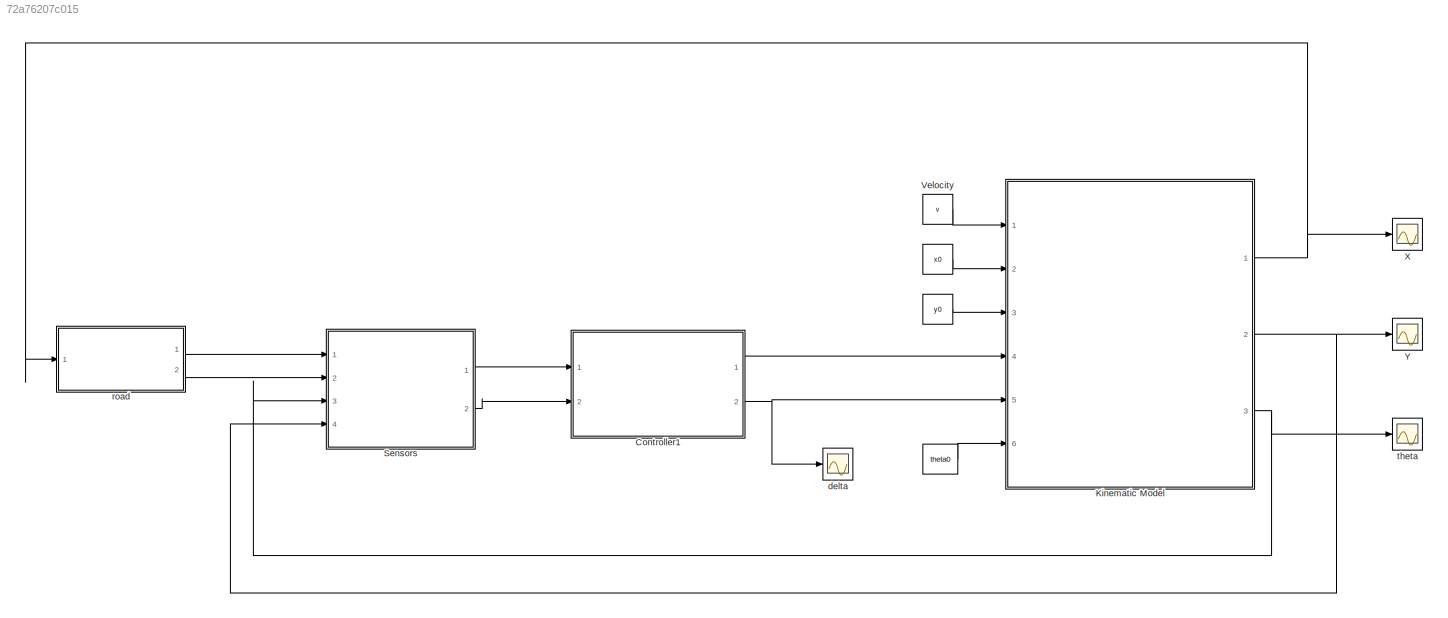
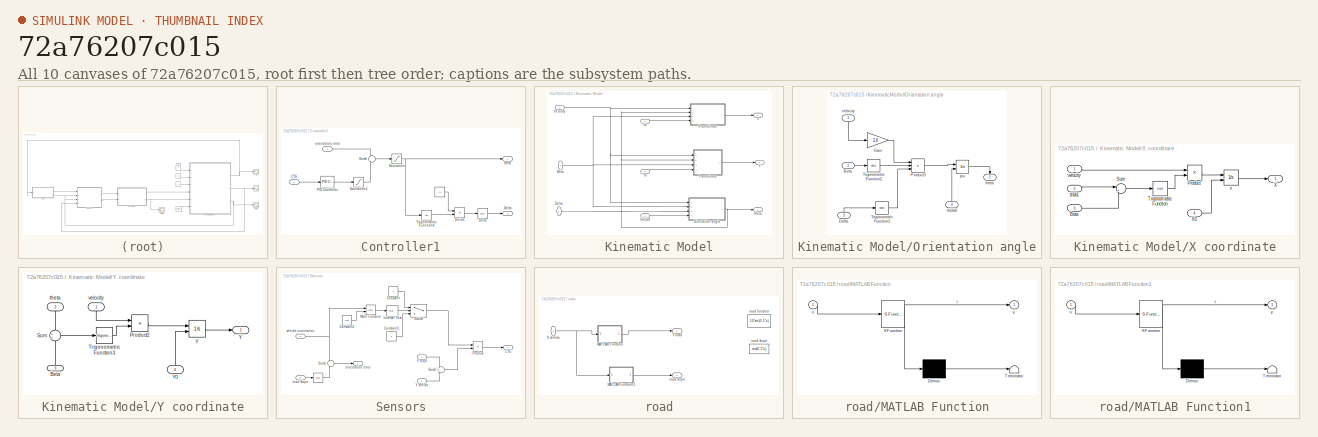
[diagram: thumbnail index - all 10 canvases of the model, root first then tree order]
MODEL slx_72a76207c015
KIND model
CONFIG AbsTol = auto
CONFIG FixedStep = 0.0001
CONFIG MaxStep = auto
CONFIG MinStep = auto
CONFIG RelTol = 1e-3
CONFIG SampleTimeConstraint = Unconstrained
CONFIG Solver = ode45
CONFIG SolverMode = SingleTasking
CONFIG SolverName = ode45
CONFIG StartTime = 0.0
CONFIG StopTime = 50
BLOCK [Constant]  
  Value = x0
BLOCK [Constant]   
  Value = y0
BLOCK [Constant]    
  Value = theta0
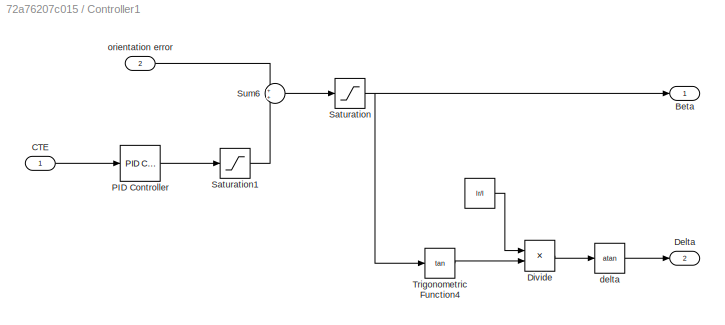
BLOCK [SubSystem] Controller1
  Ports = [2, 2]
  RequestExecContextInheritance = off
  Variant = off
BLOCK [Constant] Controller1/ 
  Value = lr/l
BLOCK [Outport] Controller1/Beta 
  IconDisplay = Port number
BLOCK [Inport] Controller1/CTE
  IconDisplay = Port number
BLOCK [Outport] Controller1/Delta
  IconDisplay = Port number
  Port = 2
BLOCK [Product] Controller1/Divide
  InputSameDT = off
  Inputs = /*
  OutDataTypeStr = Inherit: Inherit via internal rule
  Ports = [2, 1]
  RndMeth = Floor
  SaturateOnIntegerOverflow = off
BLOCK [Reference] Controller1/PID Controller  REF=simulink/Continuous/PID Controller
  Ports = [1, 1]
  SourceBlock = simulink/Continuous/PID Controller
  SourceType = PID 1dof
BLOCK [Saturate] Controller1/Saturation
  InputPortMap = u0
  LowerLimit = -pi/6
  Ports = [1, 1]
  UpperLimit = pi/6
BLOCK [Saturate] Controller1/Saturation1
  InputPortMap = u0
  LowerLimit = -pi/6
  Ports = [1, 1]
  UpperLimit = pi/6
BLOCK [Sum] Controller1/Sum6
  IconShape = round
  InputSameDT = off
  OutDataTypeStr = Inherit: Inherit via internal rule
  Ports = [2, 1]
  SaturateOnIntegerOverflow = off
BLOCK [Trigonometry] Controller1/Trigonometric Function4
  Operator = tan
  Ports = [1, 1]
BLOCK [Trigonometry] Controller1/delta 
  Operator = atan
  Ports = [1, 1]
BLOCK [Inport] Controller1/orientation error
  IconDisplay = Port number
  Port = 2
BLOCK [SubSystem] Kinematic Model
  Ports = [6, 3]
  RequestExecContextInheritance = off
  Variant = off
BLOCK [Inport] Kinematic Model/Beta 
  IconDisplay = Port number
  Port = 4
BLOCK [Inport] Kinematic Model/Delta
  IconDisplay = Port number
  Port = 5
BLOCK [SubSystem] Kinematic Model/Orientation angle
  Ports = [4, 1]
  RequestExecContextInheritance = off
  Variant = off
BLOCK [Inport] Kinematic Model/Orientation angle/Beta
  IconDisplay = Port number
  Port = 2
BLOCK [Inport] Kinematic Model/Orientation angle/Delta
  IconDisplay = Port number
  Port = 3
BLOCK [Gain] Kinematic Model/Orientation angle/Gain
  Gain = 1/l
  OutDataTypeStr = Inherit: Inherit via internal rule
  ParamDataTypeStr = Inherit: Inherit via internal rule
  SaturateOnIntegerOverflow = off
BLOCK [Product] Kinematic Model/Orientation angle/Product3
  InputSameDT = off
  Inputs = 3
  OutDataTypeStr = Inherit: Inherit via internal rule
  Ports = [3, 1]
  RndMeth = Floor
  SaturateOnIntegerOverflow = off
BLOCK [Trigonometry] Kinematic Model/Orientation angle/Trigonometric Function1
  Operator = tan
  Ports = [1, 1]
BLOCK [Trigonometry] Kinematic Model/Orientation angle/Trigonometric Function2
  Operator = cos
  Ports = [1, 1]
BLOCK [Integrator] Kinematic Model/Orientation angle/psi
  InitialConditionSource = external
  Ports = [2, 1]
BLOCK [Outport] Kinematic Model/Orientation angle/theta
  IconDisplay = Port number
BLOCK [Inport] Kinematic Model/Orientation angle/theta0
  IconDisplay = Port number
  Port = 4
BLOCK [Inport] Kinematic Model/Orientation angle/velocity
  IconDisplay = Port number
BLOCK [Inport] Kinematic Model/Velocity 
  IconDisplay = Port number
BLOCK [Outport] Kinematic Model/X
  IconDisplay = Port number
BLOCK [SubSystem] Kinematic Model/X coordinate
  Ports = [4, 1]
  RequestExecContextInheritance = off
  Variant = off
BLOCK [Inport] Kinematic Model/X coordinate/Beta
  IconDisplay = Port number
  Port = 3
BLOCK [Product] Kinematic Model/X coordinate/Product
  InputSameDT = off
  OutDataTypeStr = Inherit: Inherit via internal rule
  Ports = [2, 1]
  RndMeth = Floor
  SaturateOnIntegerOverflow = off
BLOCK [Sum] Kinematic Model/X coordinate/Sum
  IconShape = round
  InputSameDT = off
  Inputs = |++
  OutDataTypeStr = Inherit: Inherit via internal rule
  Ports = [2, 1]
  SaturateOnIntegerOverflow = off
BLOCK [Trigonometry] Kinematic Model/X coordinate/Trigonometric Function
  Operator = cos
  Ports = [1, 1]
BLOCK [Outport] Kinematic Model/X coordinate/X 
  IconDisplay = Port number
BLOCK [Inport] Kinematic Model/X coordinate/X0 
  IconDisplay = Port number
  Port = 4
BLOCK [Inport] Kinematic Model/X coordinate/theta 
  IconDisplay = Port number
  Port = 2
BLOCK [Inport] Kinematic Model/X coordinate/velocity
  IconDisplay = Port number
BLOCK [Integrator] Kinematic Model/X coordinate/x
  InitialConditionSource = external
  Ports = [2, 1]
BLOCK [Inport] Kinematic Model/X0
  IconDisplay = Port number
  Port = 2
BLOCK [Outport] Kinematic Model/Y
  IconDisplay = Port number
  Port = 2
BLOCK [SubSystem] Kinematic Model/Y coordinate
  Ports = [4, 1]
  RequestExecContextInheritance = off
  Variant = off
BLOCK [Inport] Kinematic Model/Y coordinate/Beta
  IconDisplay = Port number
  Port = 3
BLOCK [Product] Kinematic Model/Y coordinate/Product2
  InputSameDT = off
  OutDataTypeStr = Inherit: Inherit via internal rule
  Ports = [2, 1]
  RndMeth = Floor
  SaturateOnIntegerOverflow = off
BLOCK [Sum] Kinematic Model/Y coordinate/Sum
  IconShape = round
  InputSameDT = off
  OutDataTypeStr = Inherit: Inherit via internal rule
  Ports = [2, 1]
  SaturateOnIntegerOverflow = off
BLOCK [Trigonometry] Kinematic Model/Y coordinate/Trigonometric Function3
  Ports = [1, 1]
BLOCK [Outport] Kinematic Model/Y coordinate/Y
  IconDisplay = Port number
BLOCK [Inport] Kinematic Model/Y coordinate/Y0
  IconDisplay = Port number
  Port = 4
BLOCK [Inport] Kinematic Model/Y coordinate/theta
  IconDisplay = Port number
  Port = 2
BLOCK [Inport] Kinematic Model/Y coordinate/velocity
  IconDisplay = Port number
BLOCK [Integrator] Kinematic Model/Y coordinate/y 
  InitialCondition = 1
  InitialConditionSource = external
  Ports = [2, 1]
BLOCK [Inport] Kinematic Model/Y0
  IconDisplay = Port number
  Port = 3
BLOCK [Outport] Kinematic Model/theta
  IconDisplay = Port number
  Port = 3
BLOCK [Inport] Kinematic Model/theta0
  IconDisplay = Port number
  Port = 6
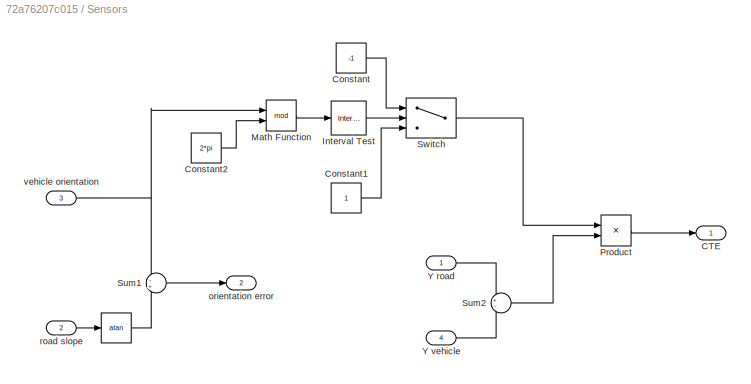
BLOCK [SubSystem] Sensors
  Ports = [4, 2]
  RequestExecContextInheritance = off
  Variant = off
BLOCK [Trigonometry] Sensors/                    
  Operator = atan
  Ports = [1, 1]
BLOCK [Outport] Sensors/CTE
  IconDisplay = Port number
BLOCK [Constant] Sensors/Constant
  Value = -1
BLOCK [Constant] Sensors/Constant1
BLOCK [Constant] Sensors/Constant2
  Value = 2*pi
BLOCK [Reference] Sensors/Interval Test  REF=simulink/Logic and Bit
Operations/Interval Test
  Ports = [1, 1]
  SourceBlock = simulink/Logic and Bit\nOperations/Interval Test
  SourceType = Interval Test
BLOCK [Math] Sensors/Math Function
  Operator = mod
  Ports = [2, 1]
BLOCK [Product] Sensors/Product
  InputSameDT = off
  OutDataTypeStr = Inherit: Inherit via internal rule
  Ports = [2, 1]
  RndMeth = Floor
  SaturateOnIntegerOverflow = off
BLOCK [Sum] Sensors/Sum1
  IconShape = round
  InputSameDT = off
  Inputs = -+
  OutDataTypeStr = Inherit: Inherit via internal rule
  Ports = [2, 1]
  SaturateOnIntegerOverflow = off
BLOCK [Sum] Sensors/Sum2
  IconShape = round
  InputSameDT = off
  Inputs = +-
  OutDataTypeStr = Inherit: Inherit via internal rule
  Ports = [2, 1]
  SaturateOnIntegerOverflow = off
BLOCK [Switch] Sensors/Switch
  Criteria = u2 > Threshold
  InputSameDT = off
  SaturateOnIntegerOverflow = off
BLOCK [Inport] Sensors/Y road
  IconDisplay = Port number
BLOCK [Inport] Sensors/Y vehicle
  IconDisplay = Port number
  Port = 4
BLOCK [Outport] Sensors/orientation error
  IconDisplay = Port number
  Port = 2
BLOCK [Inport] Sensors/road slope
  IconDisplay = Port number
  Port = 2
BLOCK [Inport] Sensors/vehicle orientation
  IconDisplay = Port number
  Port = 3
BLOCK [Constant] Velocity 
  Value = v
BLOCK [Scope] X
  Ports = [1]
  ScopeSpecificationString = Simulink.scopes.TimeScopeBlockCfg('CurrentConfiguration', extmgr.ConfigurationSet(extmgr.Configuration('Core','General UI',true),extmgr.Configuration('Core','Source UI',true),extmgr.Configuration('Sources','WiredSimulink',true,'DataLogging',true,'DataLoggingVariableName','x','DataLoggingLimitDataPoints',true,'DataLoggingSaveFormat','Array','DataLoggingDecimation','1','DataLoggingDecimateData',true...<+1699ch>
BLOCK [Scope] Y
  Ports = [1]
  ScopeSpecificationString = Simulink.scopes.TimeScopeBlockCfg('CurrentConfiguration', extmgr.ConfigurationSet(extmgr.Configuration('Core','General UI',true),extmgr.Configuration('Core','Source UI',true),extmgr.Configuration('Sources','WiredSimulink',true,'DataLogging',true,'DataLoggingVariableName','y','DataLoggingLimitDataPoints',true,'DataLoggingSaveFormat','Array','DataLoggingDecimation','1','DataLoggingDecimateData',true...<+1695ch>
BLOCK [Scope] delta
  Ports = [1]
  ScopeSpecificationString = C++SS(StrPVP('Location','[5, 49, 1371, 727]'),StrPVP('Open','off'),MxPVP('AxesTitles',24,'struct(''axes1'',''%<SignalLabel>'')'),MxPVP('ScopeGraphics',28,'struct(''FigureColor'',''[0.5 0.5 0.5]'',''AxesColor'',''[0 0 0]'',''AxesTickColor'',''[1 1 1]'',''LineColors'',''[1 1 0;1 0 1;0 1 1;1 0 0;0 1 0;0 0 1]'',''LineStyles'',''-|-|-|-|-|-'',''LineWidths'',''[0.5 0.5 0.5 0.5 0.5 0.5]'',''MarkerStyles'...<+248ch>
BLOCK [SubSystem] road
  Ports = [1, 2]
  RequestExecContextInheritance = off
  Variant = off
BLOCK [SubSystem] road/MATLAB Function
  ErrorFcn = Stateflow.Translate.translate
  PermitHierarchicalResolution = ExplicitOnly
  Ports = [1, 1]
  RequestExecContextInheritance = off
  SFBlockType = MATLAB Function
  TreatAsAtomicUnit = on
  Variant = off
BLOCK [Demux] road/MATLAB Function/ Demux 
  Outputs = 1
  Ports = [1, 1]
BLOCK [S-Function] road/MATLAB Function/ SFunction 
  EnableBusSupport = on
  FunctionName = sf_sfun
  PortCounts = [1 2]
  Ports = [1, 2]
  SFunctionDeploymentMode = off
  Tag = Stateflow S-Function Kinematic_Model_Delta_Psi_Control 2
BLOCK [Terminator] road/MATLAB Function/ Terminator 
BLOCK [Inport] road/MATLAB Function/u
  IconDisplay = Port number
BLOCK [Outport] road/MATLAB Function/y
  IconDisplay = Port number
BLOCK [SubSystem] road/MATLAB Function1
  ErrorFcn = Stateflow.Translate.translate
  PermitHierarchicalResolution = ExplicitOnly
  Ports = [1, 1]
  RequestExecContextInheritance = off
  SFBlockType = MATLAB Function
  TreatAsAtomicUnit = on
  Variant = off
BLOCK [Demux] road/MATLAB Function1/ Demux 
  Outputs = 1
  Ports = [1, 1]
BLOCK [S-Function] road/MATLAB Function1/ SFunction 
  EnableBusSupport = on
  FunctionName = sf_sfun
  PortCounts = [1 2]
  Ports = [1, 2]
  SFunctionDeploymentMode = off
  Tag = Stateflow S-Function Kinematic_Model_Delta_Psi_Control 1
BLOCK [Terminator] road/MATLAB Function1/ Terminator 
BLOCK [Inport] road/MATLAB Function1/u
  IconDisplay = Port number
BLOCK [Outport] road/MATLAB Function1/y
  IconDisplay = Port number
BLOCK [Inport] road/X vehicle
  IconDisplay = Port number
BLOCK [Outport] road/Y road
  IconDisplay = Port number
BLOCK [Fcn] road/road function
  Expr = 10*sin(0.1*u)
BLOCK [Fcn] road/road slope
  Expr = cos(0.1*u)
BLOCK [Outport] road/road slope    
  IconDisplay = Port number
  Port = 2
BLOCK [Scope] theta
  Ports = [1]
  ScopeSpecificationString = C++SS(StrPVP('Location','[5, 49, 1371, 727]'),StrPVP('Open','off'),MxPVP('AxesTitles',24,'struct(''axes1'',''%<SignalLabel>'')'),MxPVP('ScopeGraphics',28,'struct(''FigureColor'',''[0.501960784313725 0.501960784313725 0.501960784313725]'',''AxesColor'',''[0 0 0]'',''AxesTickColor'',''[1 1 1]'',''LineColors'',''[1 1 0;1 0 1;0 1 1;1 0 0;0 1 0;0 0 1]'',''LineStyles'',''-|-|-|-|-|-'',''LineWidths'',''[...<+290ch>
LINE    :1 -> Kinematic Model:6
LINE   :1 -> Kinematic Model:3
LINE  :1 -> Kinematic Model:2
LINE Controller1/ :1 -> Controller1/Divide:1
LINE Controller1/CTE:1 -> Controller1/PID Controller:1
LINE Controller1/Divide:1 -> Controller1/delta :1
LINE Controller1/PID Controller:1 -> Controller1/Saturation1:1
LINE Controller1/Saturation1:1 -> Controller1/Sum6:2
NET Controller1/Saturation:1 -> Controller1/Beta :1, Controller1/Trigonometric Function4:1
LINE Controller1/Sum6:1 -> Controller1/Saturation:1
LINE Controller1/Trigonometric Function4:1 -> Controller1/Divide:2
LINE Controller1/delta :1 -> Controller1/Delta:1
LINE Controller1/orientation error:1 -> Controller1/Sum6:1
LINE Controller1:1 -> Kinematic Model:4
NET Controller1:2 -> Kinematic Model:5, delta:1
NET Kinematic Model/Beta :1 -> Kinematic Model/Orientation angle:2, Kinematic Model/X coordinate:3, Kinematic Model/Y coordinate:3
LINE Kinematic Model/Delta:1 -> Kinematic Model/Orientation angle:3
LINE Kinematic Model/Orientation angle/Beta:1 -> Kinematic Model/Orientation angle/Trigonometric Function2:1
LINE Kinematic Model/Orientation angle/Delta:1 -> Kinematic Model/Orientation angle/Trigonometric Function1:1
LINE Kinematic Model/Orientation angle/Gain:1 -> Kinematic Model/Orientation angle/Product3:1
LINE Kinematic Model/Orientation angle/Product3:1 -> Kinematic Model/Orientation angle/psi:1
LINE Kinematic Model/Orientation angle/Trigonometric Function1:1 -> Kinematic Model/Orientation angle/Product3:3
LINE Kinematic Model/Orientation angle/Trigonometric Function2:1 -> Kinematic Model/Orientation angle/Product3:2
LINE Kinematic Model/Orientation angle/psi:1 -> Kinematic Model/Orientation angle/theta:1
LINE Kinematic Model/Orientation angle/theta0:1 -> Kinematic Model/Orientation angle/psi:2
LINE Kinematic Model/Orientation angle/velocity:1 -> Kinematic Model/Orientation angle/Gain:1
NET Kinematic Model/Orientation angle:1 -> Kinematic Model/X coordinate:2, Kinematic Model/Y coordinate:2, Kinematic Model/theta:1
NET Kinematic Model/Velocity :1 -> Kinematic Model/Orientation angle:1, Kinematic Model/X coordinate:1, Kinematic Model/Y coordinate:1
LINE Kinematic Model/X coordinate/Beta:1 -> Kinematic Model/X coordinate/Sum:2
LINE Kinematic Model/X coordinate/Product:1 -> Kinematic Model/X coordinate/x:1
LINE Kinematic Model/X coordinate/Sum:1 -> Kinematic Model/X coordinate/Trigonometric Function:1
LINE Kinematic Model/X coordinate/Trigonometric Function:1 -> Kinematic Model/X coordinate/Product:2
LINE Kinematic Model/X coordinate/X0 :1 -> Kinematic Model/X coordinate/x:2
LINE Kinematic Model/X coordinate/theta :1 -> Kinematic Model/X coordinate/Sum:1
LINE Kinematic Model/X coordinate/velocity:1 -> Kinematic Model/X coordinate/Product:1
LINE Kinematic Model/X coordinate/x:1 -> Kinematic Model/X coordinate/X :1
LINE Kinematic Model/X coordinate:1 -> Kinematic Model/X:1
LINE Kinematic Model/X0:1 -> Kinematic Model/X coordinate:4
LINE Kinematic Model/Y coordinate/Beta:1 -> Kinematic Model/Y coordinate/Sum:2
LINE Kinematic Model/Y coordinate/Product2:1 -> Kinematic Model/Y coordinate/y :1
LINE Kinematic Model/Y coordinate/Sum:1 -> Kinematic Model/Y coordinate/Trigonometric Function3:1
LINE Kinematic Model/Y coordinate/Trigonometric Function3:1 -> Kinematic Model/Y coordinate/Product2:2
LINE Kinematic Model/Y coordinate/Y0:1 -> Kinematic Model/Y coordinate/y :2
LINE Kinematic Model/Y coordinate/theta:1 -> Kinematic Model/Y coordinate/Sum:1
LINE Kinematic Model/Y coordinate/velocity:1 -> Kinematic Model/Y coordinate/Product2:1
LINE Kinematic Model/Y coordinate/y :1 -> Kinematic Model/Y coordinate/Y:1
LINE Kinematic Model/Y coordinate:1 -> Kinematic Model/Y:1
LINE Kinematic Model/Y0:1 -> Kinematic Model/Y coordinate:4
LINE Kinematic Model/theta0:1 -> Kinematic Model/Orientation angle:4
NET Kinematic Model:1 -> X:1, road:1
NET Kinematic Model:2 -> Sensors:4, Y:1
NET Kinematic Model:3 -> Sensors:3, theta:1
LINE Sensors/                    :1 -> Sensors/Sum1:2
LINE Sensors/Constant1:1 -> Sensors/Switch:3
LINE Sensors/Constant2:1 -> Sensors/Math Function:2
LINE Sensors/Constant:1 -> Sensors/Switch:1
LINE Sensors/Interval Test:1 -> Sensors/Switch:2
LINE Sensors/Math Function:1 -> Sensors/Interval Test:1
LINE Sensors/Product:1 -> Sensors/CTE:1
LINE Sensors/Sum1:1 -> Sensors/orientation error:1
LINE Sensors/Sum2:1 -> Sensors/Product:2
LINE Sensors/Switch:1 -> Sensors/Product:1
LINE Sensors/Y road:1 -> Sensors/Sum2:1
LINE Sensors/Y vehicle:1 -> Sensors/Sum2:2
LINE Sensors/road slope:1 -> Sensors/                    :1
NET Sensors/vehicle orientation:1 -> Sensors/Math Function:1, Sensors/Sum1:1
LINE Sensors:1 -> Controller1:1
LINE Sensors:2 -> Controller1:2
LINE Velocity :1 -> Kinematic Model:1
LINE road/MATLAB Function1:1 -> road/road slope    :1
LINE road/MATLAB Function:1 -> road/Y road:1
NET road/X vehicle:1 -> road/MATLAB Function1:1, road/MATLAB Function:1
LINE road:1 -> Sensors:1
LINE road:2 -> Sensors:2
note: NET lines group one-source signal fan-out (src -> all destinations, sorted); 1:1 wires keep LINE
CHART road/MATLAB Function1 states=1 transitions=1
  STATE_LABEL 'eML_blk_kernel()'
  STATE_LABEL 'SCRIPT:\nfunction y = fcn(u)\n%#codegen\n\ny = drFcn(u);'
CHART road/MATLAB Function states=1 transitions=1
  STATE_LABEL 'eML_blk_kernel()'
  STATE_LABEL 'SCRIPT:\nfunction y = fcn(u)\n%#codegen\n\ny = roadFcn(u);'
